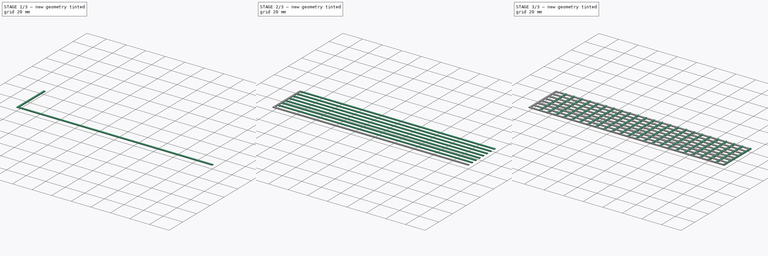
[diagram: build sequence overview — one tinted view per stage of 3, left to right]
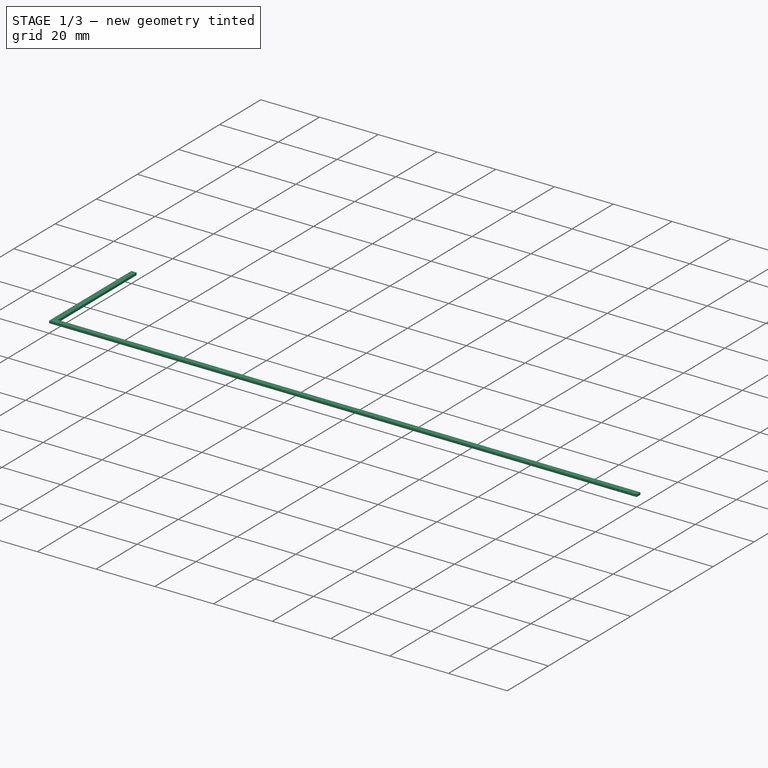
[diagram: stage 1 of 3 — iso view after this stage's code; geometry added in this stage tinted green]
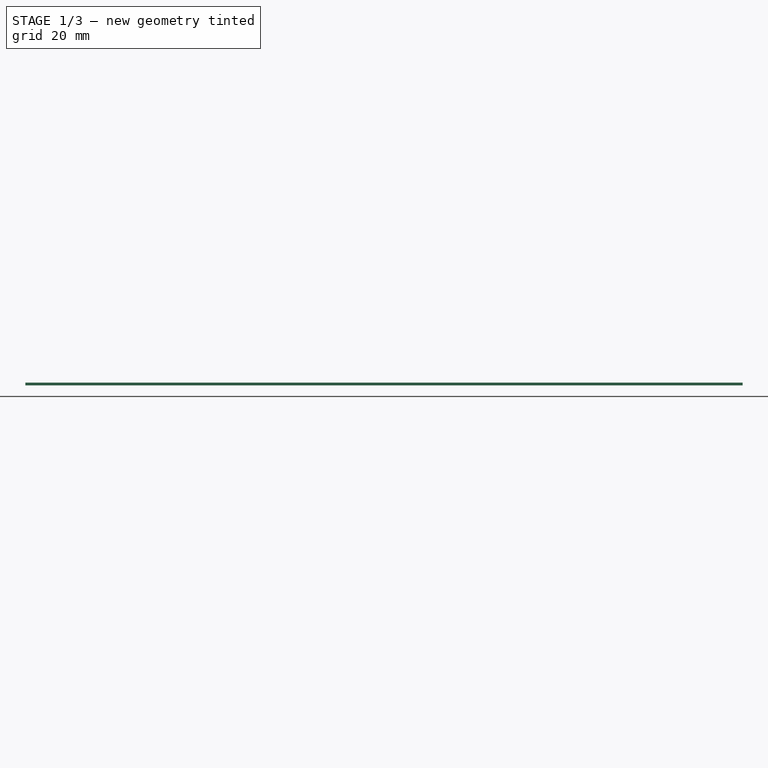
[diagram: stage 1 of 3 — front view after this stage's code; geometry added in this stage tinted green]
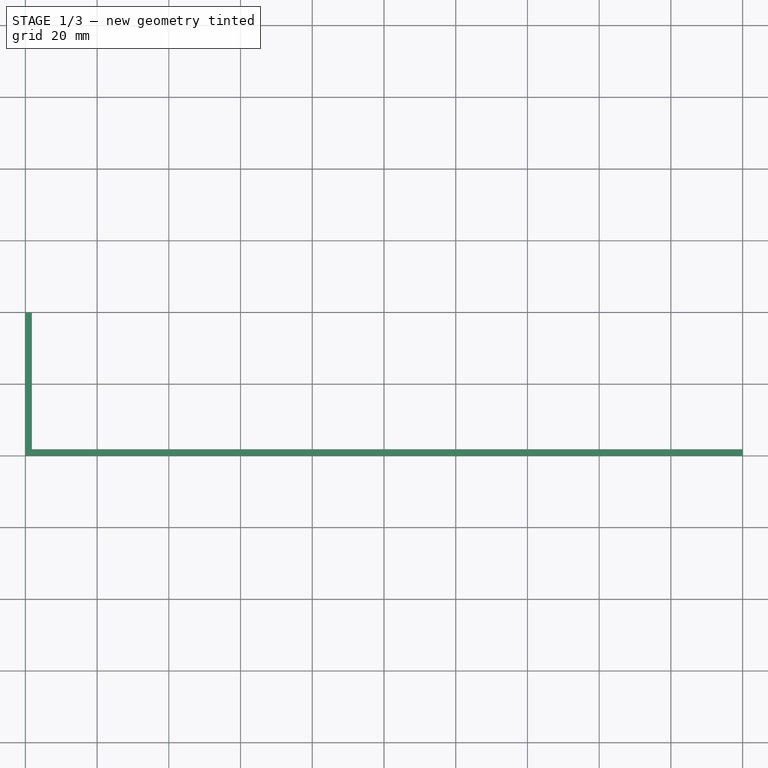
[diagram: stage 1 of 3 — top view after this stage's code; geometry added in this stage tinted green]
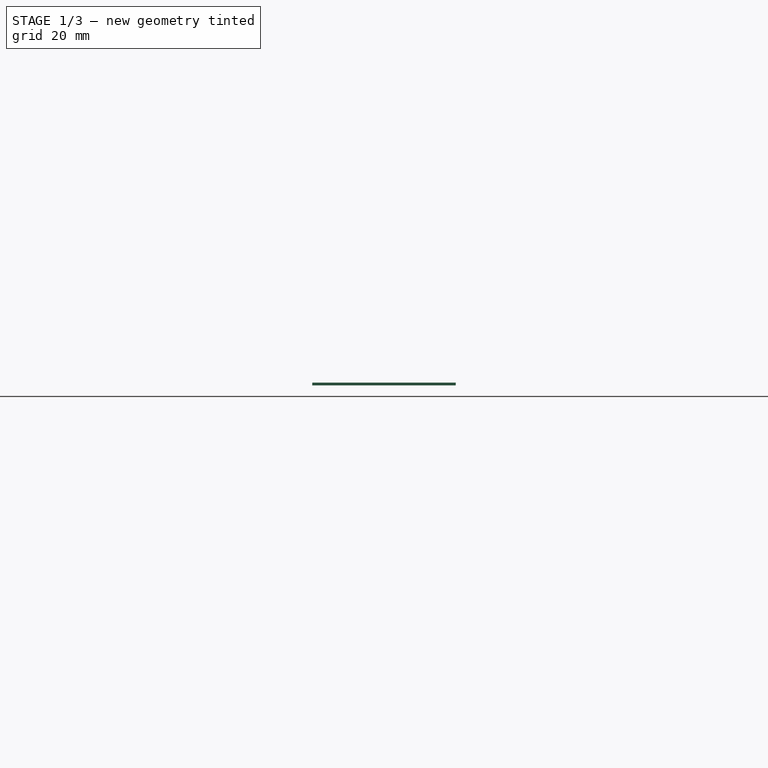
[diagram: stage 1 of 3 — right view after this stage's code; geometry added in this stage tinted green]
FCSTD DOCUMENT  (FreeCAD 0.20R29177 (Git))
Label: Elastic40x200_Wrist
License: Creative Commons Attribution
LicenseURL: http://creativecommons.org/licenses/by/4.0/
objects: Sketcher::SketchObject×3, PartDesign::Pad×3, PartDesign::LinearPattern×2, Spreadsheet::Sheet×1, PartDesign::Body×1, Part::Refine×1
note: 13 computed .brp shape members not serialized (recipe doc carries the construction recipe); baked Part::Feature solids carry a one-line shape summary decoded from their .brp

FEATURE [Spreadsheet::Sheet] Spreadsheet  label="param"
  cells = A2=Flaeche[mm2]; B2=5; A3=hoehe; B3=0.8; A4=breite; B4=40; A5=länge; B5=200; A7=Laengssteg; A8=Breite; B8=1.8; A9=FlaecheSteg; B9==B3 * B8; A11=Anz. Kalk; B11==B2 / B9; A12=StegeAnz.; B12=8; A13=Fläche; B13==B12 * B9
FEATURE [Sketcher::SketchObject] Sketch
  FullyConstrained = true
  MapMode = 5
  Placement = pos=(0,0,0) rot=(1,0,0;1.5708rad)
  Support = -> [XZ_Plane]
  expr: Constraints[10] = <<param>>.B3
  expr: Constraints[9] = <<param>>.B5
  sketch-geometry (4):
    g0: LineSegment StartX=0 StartY=0 StartZ=0 EndX=200 EndY=0 EndZ=0
    g1: LineSegment StartX=200 StartY=0 StartZ=0 EndX=200 EndY=0.8 EndZ=0
    g2: LineSegment StartX=200 StartY=0.8 StartZ=0 EndX=0 EndY=0.8 EndZ=0
    g3: LineSegment StartX=0 StartY=0.8 StartZ=0 EndX=0 EndY=0 EndZ=0
  constraints (11):
    c: Coincident(g0,g1)
    c: Coincident(g1,g2)
    c: Coincident(g2,g3)
    c: Coincident(g3,g0)
    c: Horizontal(g0)
    c: Horizontal(g2)
    c: Vertical(g1)
    c: Vertical(g3)
    c: Coincident(g0,g-1)
    c: DistanceX(g2,g2) = 200
    c: DistanceY(g3,g3) = 0.8
FEATURE [PartDesign::Pad] Pad  label="Pad_Laenge"
  Direction = (0,-1,-2e-16)
  Length = 1.8
  Length2 = 10
  Placement = pos=(0,0,0) rot=(1,0,0;1.5708rad)
  Profile = -> Sketch
  ReferenceAxis = -> Sketch [N_Axis]
  Reversed = true
  Type = 0
  expr: Length = <<param>>.B8
FEATURE [Sketcher::SketchObject] Sketch001
  FullyConstrained = true
  MapMode = 5
  Support = -> [XY_Plane]
  expr: Constraints[10] = <<param>>.B8
  expr: Constraints[9] = <<param>>.B4
  sketch-geometry (4):
    g0: LineSegment StartX=0 StartY=0 StartZ=0 EndX=1.8 EndY=0 EndZ=0
    g1: LineSegment StartX=1.8 StartY=0 StartZ=0 EndX=1.8 EndY=40 EndZ=0
    g2: LineSegment StartX=1.8 StartY=40 StartZ=0 EndX=0 EndY=40 EndZ=0
    g3: LineSegment StartX=0 StartY=40 StartZ=0 EndX=0 EndY=0 EndZ=0
  constraints (11):
    c: Coincident(g0,g1)
    c: Coincident(g1,g2)
    c: Coincident(g2,g3)
    c: Coincident(g3,g0)
    c: Horizontal(g0)
    c: Horizontal(g2)
    c: Vertical(g1)
    c: Vertical(g3)
    c: Coincident(g0,g-1)
    c: DistanceY(g3,g3) = 40
    c: DistanceX(g2,g2) = 1.8
FEATURE [PartDesign::Pad] Pad001  label="Pad_Breite"
  BaseFeature = -> Pad
  Direction = (0,0,1)
  Length = 0.8
  Length2 = 10
  Placement = pos=(0,0,0) rot=(1,0,0;1.5708rad)
  Profile = -> Sketch001
  ReferenceAxis = -> Sketch001 [N_Axis]
  Type = 0
  expr: Length = <<param>>.B3
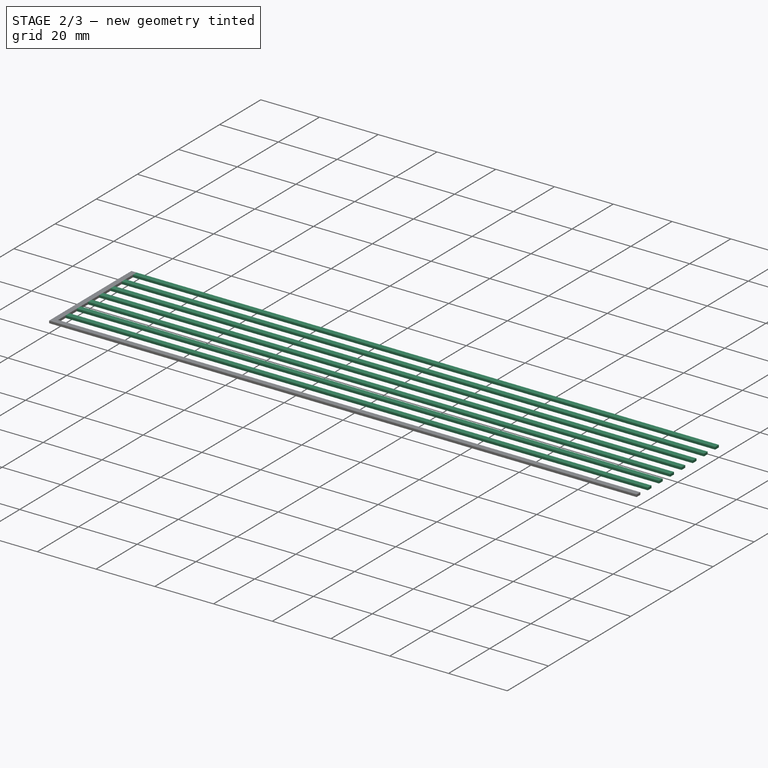
[diagram: stage 2 of 3 — iso view after this stage's code; geometry added in this stage tinted green]
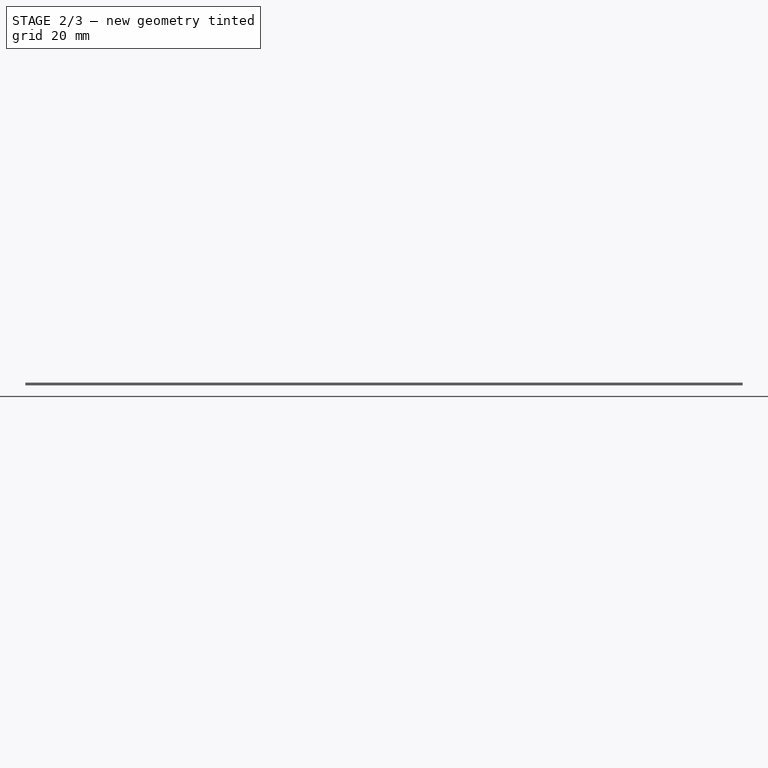
[diagram: stage 2 of 3 — front view after this stage's code; geometry added in this stage tinted green]
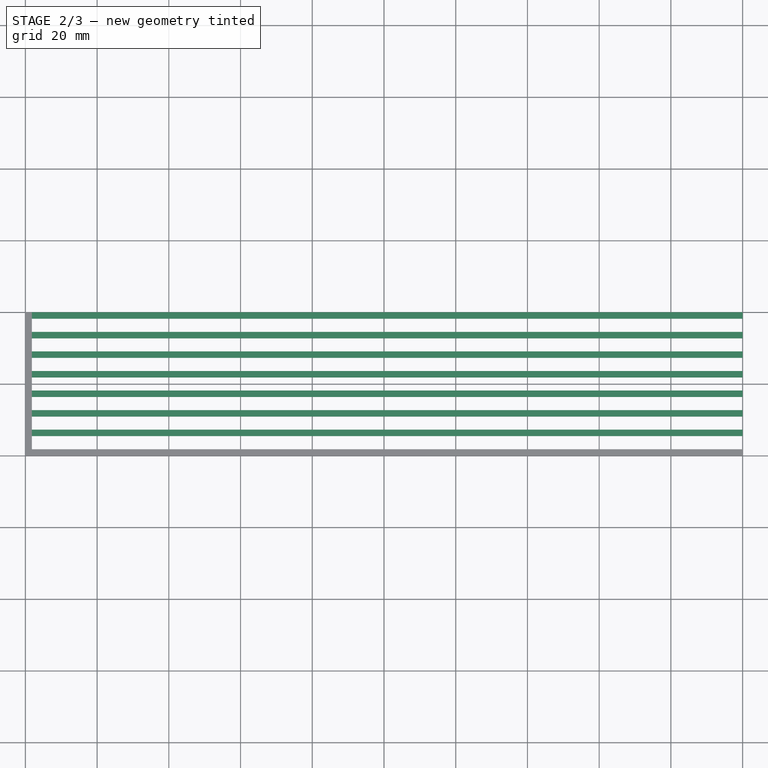
[diagram: stage 2 of 3 — top view after this stage's code; geometry added in this stage tinted green]
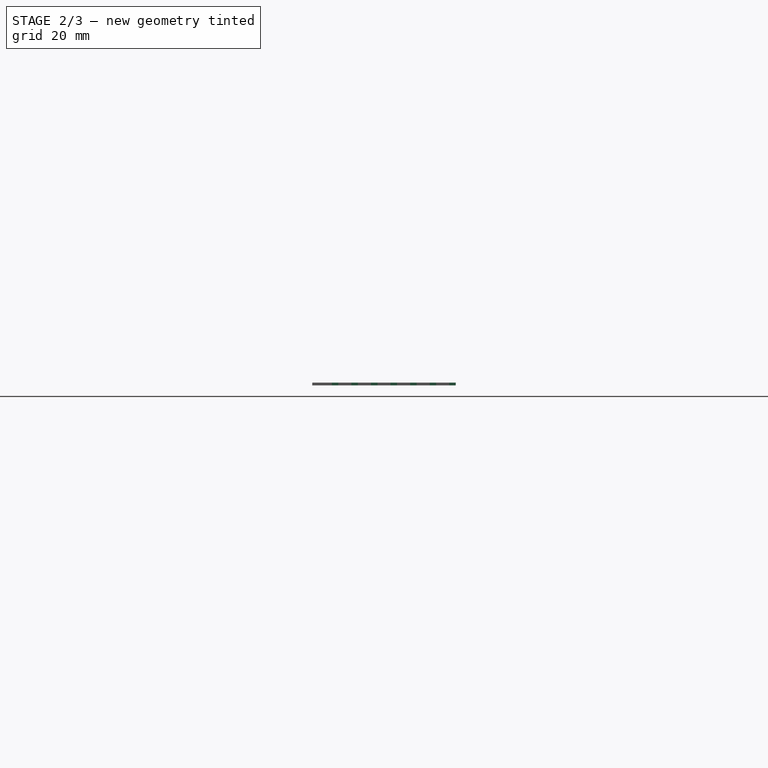
[diagram: stage 2 of 3 — right view after this stage's code; geometry added in this stage tinted green]
FEATURE [PartDesign::LinearPattern] LinearPattern
  BaseFeature = -> Pad001
  Direction = -> Sketch [N_Axis]
  Length = 38.2
  Occurrences = 8
  Originals = -> [Pad]
  Placement = pos=(0,0,0) rot=(1,0,0;1.5708rad)
  Reversed = true
  expr: Length = <<param>>.B4 - <<param>>.B8
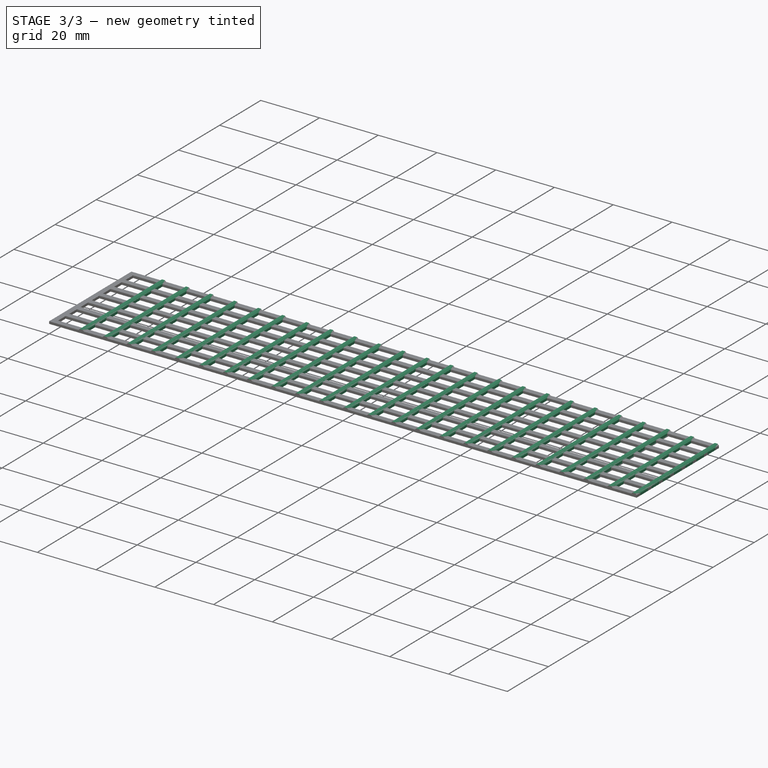
[diagram: stage 3 of 3 — iso view after this stage's code; geometry added in this stage tinted green]
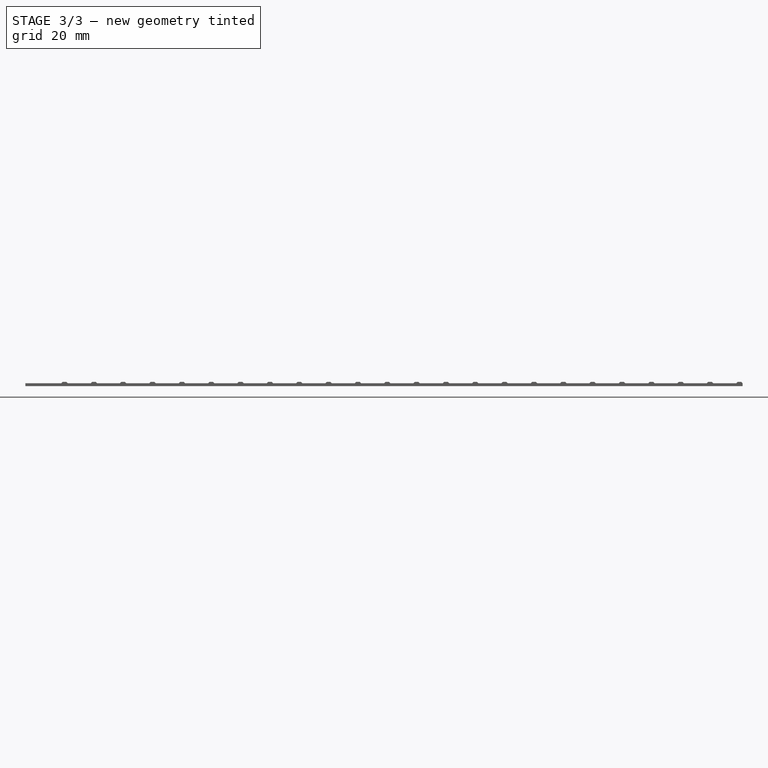
[diagram: stage 3 of 3 — front view after this stage's code; geometry added in this stage tinted green]
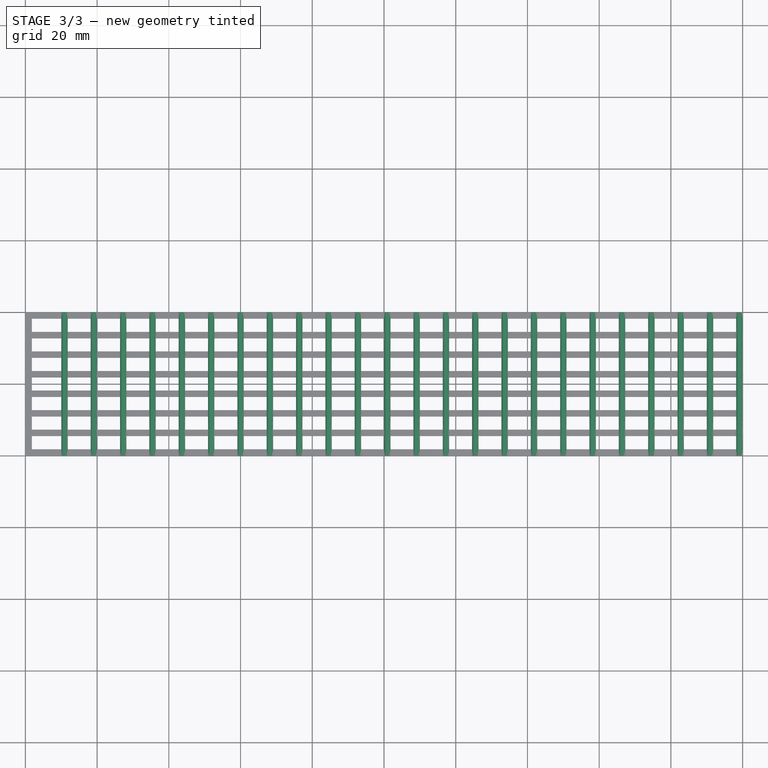
[diagram: stage 3 of 3 — top view after this stage's code; geometry added in this stage tinted green]
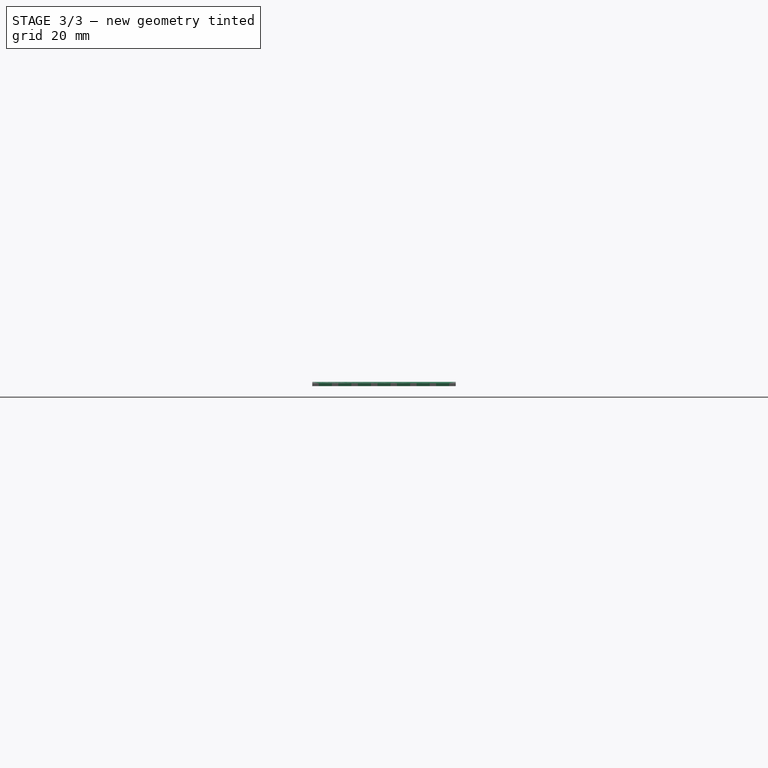
[diagram: stage 3 of 3 — right view after this stage's code; geometry added in this stage tinted green]
FEATURE [Sketcher::SketchObject] Sketch002
  FullyConstrained = true
  MapMode = 5
  Placement = pos=(0,0,0) rot=(1,0,0;1.5708rad)
  Support = -> [XZ_Plane]
  expr: Constraints[5] = <<param>>.B3
  sketch-geometry (6):
    g0: LineSegment StartX=10 StartY=0 StartZ=0 EndX=11.8 EndY=0 EndZ=0
    g1: LineSegment StartX=11.8 StartY=0 StartZ=0 EndX=11.8 EndY=0.8 EndZ=0
    g2: LineSegment StartX=10 StartY=0.8 StartZ=0 EndX=10 EndY=0 EndZ=0
    g3: LineSegment StartX=10 StartY=0.8 StartZ=0 EndX=10.4 EndY=1.2 EndZ=0
    g4: LineSegment StartX=10.4 StartY=1.2 StartZ=0 EndX=11.4 EndY=1.2 EndZ=0
    g5: LineSegment StartX=11.4 StartY=1.2 StartZ=0 EndX=11.8 EndY=0.8 EndZ=0
  constraints (18):
    c: Horizontal(g0)
    c: Coincident(g0,g1)
    c: Vertical(g1)
    c: Coincident(g2,g0)
    c: Vertical(g2)
    c: DistanceY(g2,g2) = 0.8
    c: DistanceX(g0,g0) = 1.8
    c: Coincident(g2,g3)
    c: Coincident(g3,g4)
    c: Horizontal(g4)
    c: Coincident(g4,g5)
    c: Coincident(g5,g1)
    c: Equal(g5,g3)
    c: Perpendicular(g3,g5)
    c: Equal(g1,g2)
    c: DistanceY(g0,g4) = 1.2
    c: PointOnObject(g0,g-1)
    c: DistanceX(g-1,g0) = 10
FEATURE [PartDesign::Pad] Pad002
  BaseFeature = -> LinearPattern
  Direction = (0,-1,-2e-16)
  Length = 40
  Length2 = 10
  Placement = pos=(0,0,0) rot=(1,0,0;1.5708rad)
  Profile = -> Sketch002
  ReferenceAxis = -> Sketch002 [N_Axis]
  Reversed = true
  Type = 0
  expr: Length = <<param>>.B4
FEATURE [PartDesign::LinearPattern] LinearPattern001
  BaseFeature = -> Pad002
  Direction = -> Sketch002 [H_Axis]
  Length = 188.2
  Occurrences = 24
  Originals = -> [Pad002]
  Placement = pos=(0,0,0) rot=(1,0,0;1.5708rad)
  expr: Length = <<param>>.B5 - 11.8
  expr: Occurrences = round((<<param>>.B5 - 12) / 8)
FEATURE [PartDesign::Body] Body
  Group = -> [Sketch,Pad,Sketch001,Pad001,LinearPattern,Sketch002,Pad002,LinearPattern001]
  Origin = -> Origin
  Tip = -> LinearPattern001
FEATURE [Part::Refine] Body001
  Source = -> Body
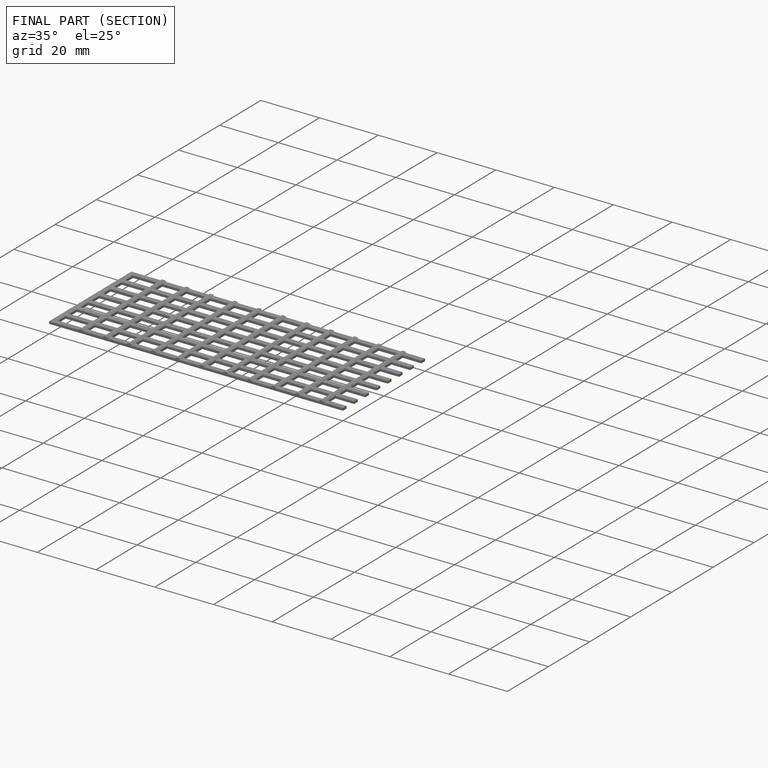
[diagram: finished part — half-section view (interior)]
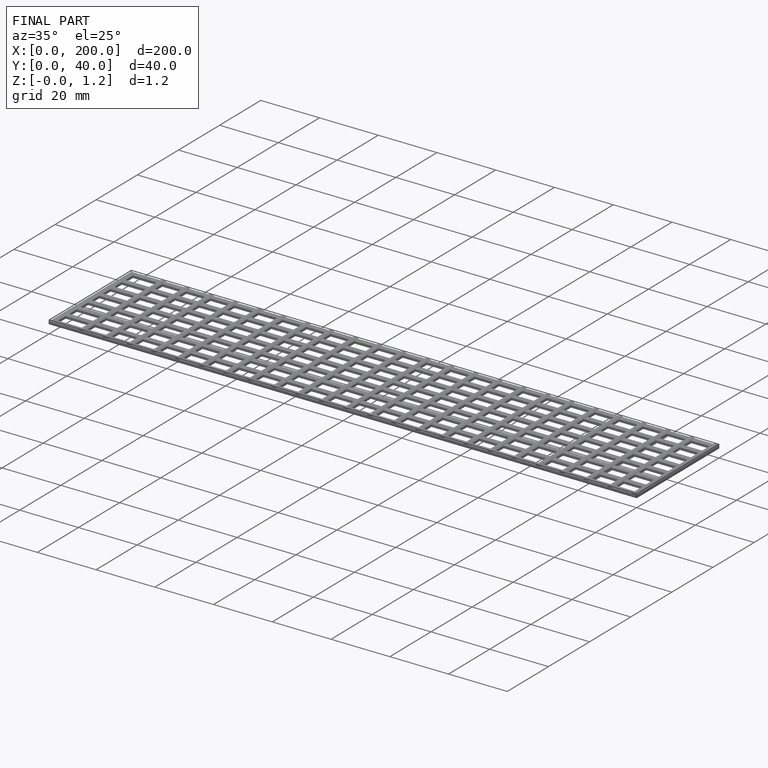
[diagram: finished part — iso view with bounding-box wireframe]
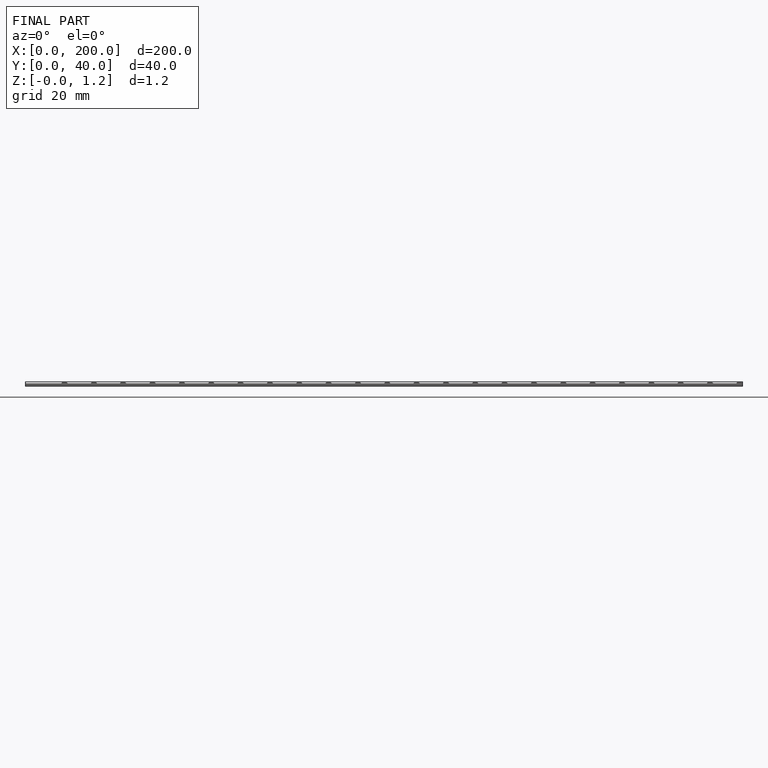
[diagram: finished part — front view with bounding-box wireframe]
